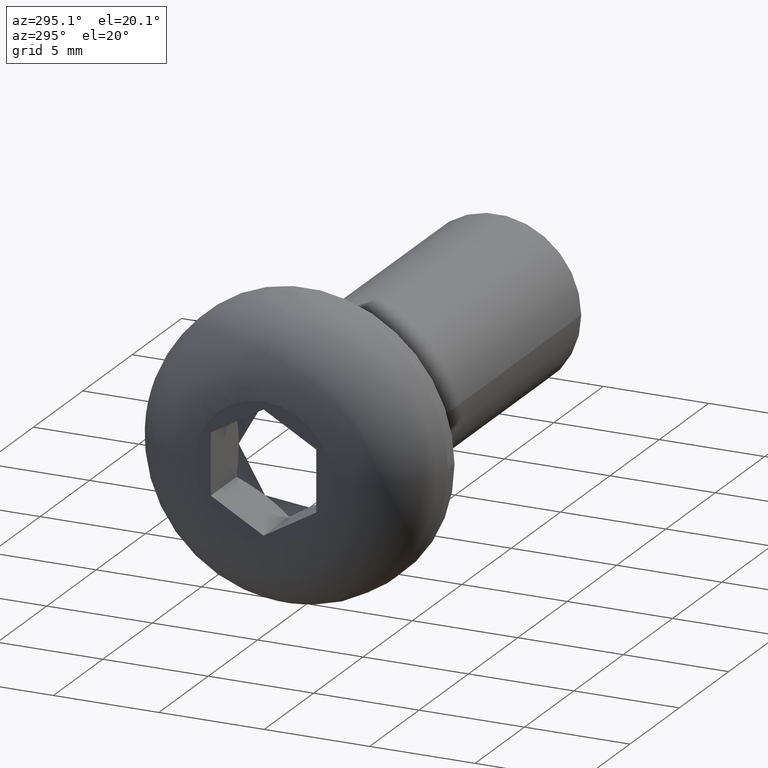
[diagram: clean part render]
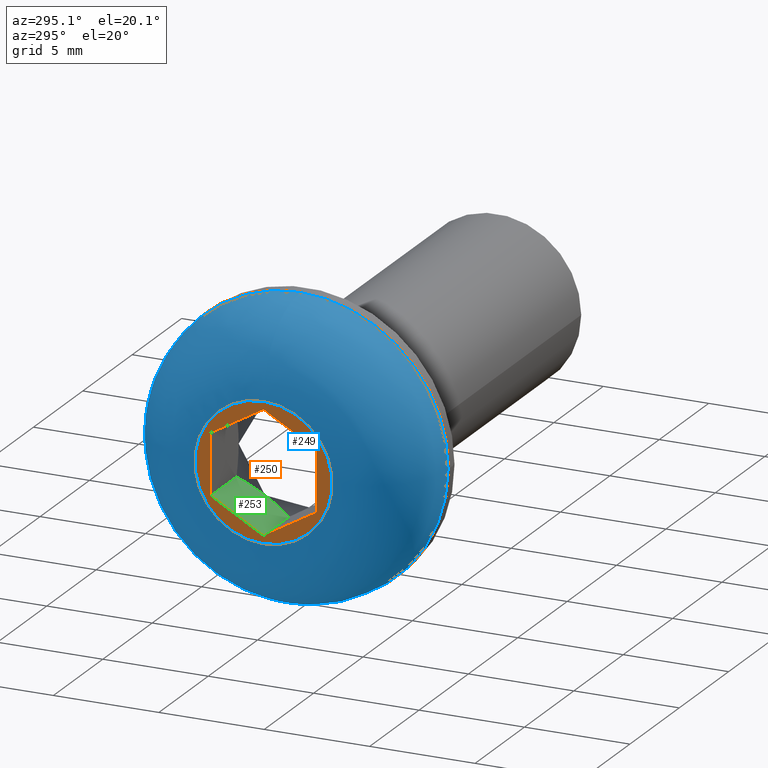
[diagram: same view with three faces highlighted in distinct colors, each labeled with its STEP entity id]
A machine part, auxiliary view with three faces highlighted in distinct colors.
Their STEP definitions:

[orange] entity #250 — the highlighted planar face has unit normal (-1, -0, 0).
#26=FACE_BOUND('',#93,.T.);
#29=PLANE('',#299);
#38=LINE('',#438,#54);
#39=LINE('',#440,#55);
#40=LINE('',#442,#56);
#41=LINE('',#444,#57);
#42=LINE('',#446,#58);
#43=LINE('',#447,#59);
#54=VECTOR('',#348,10.);
#55=VECTOR('',#349,10.);
#56=VECTOR('',#350,10.);
#57=VECTOR('',#351,10.);
#58=VECTOR('',#352,10.);
#59=VECTOR('',#353,10.);
#76=FACE_OUTER_BOUND('',#92,.T.);
#92=EDGE_LOOP('',(#197));
#93=EDGE_LOOP('',(#198,#199,#200,#201,#202,#203));
#113=CIRCLE('',#298,3.26);
#123=VERTEX_POINT('',#432);
#124=VERTEX_POINT('',#436);
#125=VERTEX_POINT('',#437);
#126=VERTEX_POINT('',#439);
#127=VERTEX_POINT('',#441);
#128=VERTEX_POINT('',#443);
#129=VERTEX_POINT('',#445);
#151=EDGE_CURVE('',#123,#123,#113,.T.);
#152=EDGE_CURVE('',#124,#125,#38,.T.);
#153=EDGE_CURVE('',#125,#126,#39,.T.);
#154=EDGE_CURVE('',#126,#127,#40,.T.);
#155=EDGE_CURVE('',#127,#128,#41,.T.);
#156=EDGE_CURVE('',#128,#129,#42,.T.);
#157=EDGE_CURVE('',#129,#124,#43,.T.);
#197=ORIENTED_EDGE('',*,*,#151,.F.);
#198=ORIENTED_EDGE('',*,*,#152,.T.);
#199=ORIENTED_EDGE('',*,*,#153,.T.);
#200=ORIENTED_EDGE('',*,*,#154,.T.);
#201=ORIENTED_EDGE('',*,*,#155,.T.);
#202=ORIENTED_EDGE('',*,*,#156,.T.);
#203=ORIENTED_EDGE('',*,*,#157,.T.);
#250=ADVANCED_FACE('',(#76,#26),#29,.T.);
#298=AXIS2_PLACEMENT_3D('',#434,#344,#345);
#299=AXIS2_PLACEMENT_3D('',#435,#346,#347);
#344=DIRECTION('center_axis',(1.,5.98373334115326E-18,0.));
#345=DIRECTION('ref_axis',(5.98373334115326E-18,-1.,1.22464679914735E-16));
#346=DIRECTION('center_axis',(-1.,-5.98373334115326E-18,0.));
#347=DIRECTION('ref_axis',(0.,0.,1.));
#348=DIRECTION('',(-5.75324797015349E-33,9.61481343191782E-16,1.));
#349=DIRECTION('',(5.18206508291066E-18,-0.866025403784438,0.5));
#350=DIRECTION('',(5.18206508291066E-18,-0.866025403784439,-0.5));
#351=DIRECTION('',(5.75324797015348E-34,-9.61481343191782E-17,-1.));
#352=DIRECTION('',(-5.18206508291066E-18,0.866025403784439,-0.5));
#353=DIRECTION('',(-5.18206508291066E-18,0.866025403784439,0.5));
#432=CARTESIAN_POINT('',(-4.4,-5.45237950046177E-16,3.26));
#434=CARTESIAN_POINT('Origin',(-4.4,-1.46003093524139E-16,0.));
#435=CARTESIAN_POINT('Origin',(-4.4,4.94337567297407,0.));
#436=CARTESIAN_POINT('',(-4.4,2.5,-1.44337567297407));
#437=CARTESIAN_POINT('',(-4.4,2.5,1.44337567297406));
#438=CARTESIAN_POINT('',(-4.4,2.5,0.721687836487029));
#439=CARTESIAN_POINT('',(-4.4,2.07521986050829E-16,2.88675134594813));
#440=CARTESIAN_POINT('',(-4.4,0.625,2.52590742770461));
#441=CARTESIAN_POINT('',(-4.4,-2.5,1.44337567297406));
#442=CARTESIAN_POINT('',(-4.4,-1.875,1.80421959121758));
#443=CARTESIAN_POINT('',(-4.4,-2.5,-1.44337567297406));
#444=CARTESIAN_POINT('',(-4.4,-2.5,-0.721687836487032));
#445=CARTESIAN_POINT('',(-4.4,-4.94147952424845E-16,-2.88675134594813));
#446=CARTESIAN_POINT('',(-4.4,-0.625000000000001,-2.52590742770461));
#447=CARTESIAN_POINT('',(-4.4,1.875,-1.80421959121758));

[blue] entity #249 — the highlighted face is a freeform B-spline surface patch.
#22=(
BOUNDED_SURFACE()
B_SPLINE_SURFACE(2,2,((#401,#402,#403,#404,#405,#406,#407,#408,#409),(#410,
#411,#412,#413,#414,#415,#416,#417,#418),(#419,#420,#421,#422,#423,#424,
#425,#426,#427)),.UNSPECIFIED.,.F.,.T.,.F.)
B_SPLINE_SURFACE_WITH_KNOTS((3,3),(3,2,2,2,3),(-1.5707963267949,1.20300443014027E-17),
(-3.14159265358979,-1.5707963267949,0.,1.5707963267949,3.14159265358979),
 .UNSPECIFIED.)
GEOMETRIC_REPRESENTATION_ITEM()
RATIONAL_B_SPLINE_SURFACE(((1.,0.707106781186548,1.,0.707106781186548,1.,
0.707106781186548,1.,0.707106781186548,1.),(0.707106781186548,0.5,0.707106781186548,
0.5,0.707106781186548,0.5,0.707106781186548,0.5,0.707106781186548),(1.,
0.707106781186548,1.,0.707106781186548,1.,0.707106781186548,1.,0.707106781186548,
1.)))
REPRESENTATION_ITEM('')
SURFACE()
);
#75=FACE_OUTER_BOUND('',#91,.T.);
#91=EDGE_LOOP('',(#192,#193,#194,#195,#196));
#110=CIRCLE('',#295,7.);
#111=CIRCLE('',#296,7.);
#112=CIRCLE('',#297,3.74);
#113=CIRCLE('',#298,3.26);
#121=VERTEX_POINT('',#428);
#122=VERTEX_POINT('',#429);
#123=VERTEX_POINT('',#432);
#148=EDGE_CURVE('',#121,#122,#110,.T.);
#149=EDGE_CURVE('',#122,#121,#111,.T.);
#150=EDGE_CURVE('',#121,#123,#112,.T.);
#151=EDGE_CURVE('',#123,#123,#113,.T.);
#192=ORIENTED_EDGE('',*,*,#148,.T.);
#193=ORIENTED_EDGE('',*,*,#149,.T.);
#194=ORIENTED_EDGE('',*,*,#150,.T.);
#195=ORIENTED_EDGE('',*,*,#151,.T.);
#196=ORIENTED_EDGE('',*,*,#150,.F.);
#249=ADVANCED_FACE('',(#75),#22,.F.);
#295=AXIS2_PLACEMENT_3D('',#430,#338,#339);
#296=AXIS2_PLACEMENT_3D('',#431,#340,#341);
#297=AXIS2_PLACEMENT_3D('',#433,#342,#343);
#298=AXIS2_PLACEMENT_3D('',#434,#344,#345);
#338=DIRECTION('center_axis',(-1.,-5.98373334115326E-18,0.));
#339=DIRECTION('ref_axis',(0.,-1.,1.22464679914735E-16));
#340=DIRECTION('center_axis',(-1.,-5.98373334115326E-18,0.));
#341=DIRECTION('ref_axis',(0.,-1.,1.22464679914735E-16));
#342=DIRECTION('center_axis',(5.98373334115326E-18,-1.,-1.22464679914735E-16));
#343=DIRECTION('ref_axis',(0.,-1.22464679914735E-16,1.));
#344=DIRECTION('center_axis',(1.,5.98373334115326E-18,0.));
#345=DIRECTION('ref_axis',(5.98373334115326E-18,-1.,1.22464679914735E-16));
#401=CARTESIAN_POINT('Ctrl Pts',(-4.4,-1.46003093524139E-16,3.26));
#402=CARTESIAN_POINT('Ctrl Pts',(-4.4,-3.26,3.26));
#403=CARTESIAN_POINT('Ctrl Pts',(-4.4,-3.26,0.));
#404=CARTESIAN_POINT('Ctrl Pts',(-4.4,-3.26,-3.26));
#405=CARTESIAN_POINT('Ctrl Pts',(-4.4,-1.46003093524139E-16,-3.26));
#406=CARTESIAN_POINT('Ctrl Pts',(-4.4,3.26,-3.26));
#407=CARTESIAN_POINT('Ctrl Pts',(-4.4,3.26,0.));
#408=CARTESIAN_POINT('Ctrl Pts',(-4.4,3.26,3.26));
#409=CARTESIAN_POINT('Ctrl Pts',(-4.4,-1.46003093524139E-16,3.26));
#410=CARTESIAN_POINT('Ctrl Pts',(-4.4,-1.46003093524139E-16,7.));
#411=CARTESIAN_POINT('Ctrl Pts',(-4.4,-7.,7.));
#412=CARTESIAN_POINT('Ctrl Pts',(-4.4,-7.,0.));
#413=CARTESIAN_POINT('Ctrl Pts',(-4.4,-7.,-7.));
#414=CARTESIAN_POINT('Ctrl Pts',(-4.4,-1.46003093524139E-16,-7.));
#415=CARTESIAN_POINT('Ctrl Pts',(-4.4,7.,-7.));
#416=CARTESIAN_POINT('Ctrl Pts',(-4.4,7.,0.));
#417=CARTESIAN_POINT('Ctrl Pts',(-4.4,7.,7.));
#418=CARTESIAN_POINT('Ctrl Pts',(-4.4,-1.46003093524139E-16,7.));
#419=CARTESIAN_POINT('Ctrl Pts',(-0.659999999999995,-1.23623930828226E-16,
7.));
#420=CARTESIAN_POINT('Ctrl Pts',(-0.659999999999995,-7.,7.));
#421=CARTESIAN_POINT('Ctrl Pts',(-0.659999999999995,-7.,0.));
#422=CARTESIAN_POINT('Ctrl Pts',(-0.659999999999995,-7.,-7.));
#423=CARTESIAN_POINT('Ctrl Pts',(-0.659999999999995,-1.23623930828226E-16,
-7.));
#424=CARTESIAN_POINT('Ctrl Pts',(-0.659999999999995,7.,-7.));
#425=CARTESIAN_POINT('Ctrl Pts',(-0.659999999999995,7.,0.));
#426=CARTESIAN_POINT('Ctrl Pts',(-0.659999999999995,7.,7.));
#427=CARTESIAN_POINT('Ctrl Pts',(-0.659999999999995,-1.23623930828226E-16,
7.));
#428=CARTESIAN_POINT('',(-0.659999999999995,-9.80876690231374E-16,7.));
#429=CARTESIAN_POINT('',(-0.659999999999995,-7.,-8.57252759403147E-16));
#430=CARTESIAN_POINT('Origin',(-0.659999999999995,-1.23623930828226E-16,
0.));
#431=CARTESIAN_POINT('Origin',(-0.659999999999995,-1.23623930828226E-16,
0.));
#432=CARTESIAN_POINT('',(-4.4,-5.45237950046177E-16,3.26));
#433=CARTESIAN_POINT('Origin',(-0.659999999999995,-5.22858787350264E-16,
3.26));
#434=CARTESIAN_POINT('Origin',(-4.4,-1.46003093524139E-16,0.));

[green] entity #253 — the highlighted planar face has unit normal (-0, 0.5, -0.866).
#16=(
BOUNDED_CURVE()
B_SPLINE_CURVE(2,(#460,#461,#462),.UNSPECIFIED.,.F.,.F.)
B_SPLINE_CURVE_WITH_KNOTS((3,3),(0.,0.292109034519483),.UNSPECIFIED.)
CURVE()
GEOMETRIC_REPRESENTATION_ITEM()
RATIONAL_B_SPLINE_CURVE((1.,1.15470053837925,1.))
REPRESENTATION_ITEM('')
);
#31=PLANE('',#302);
#43=LINE('',#447,#59);
#45=LINE('',#456,#61);
#47=LINE('',#463,#63);
#59=VECTOR('',#353,10.);
#61=VECTOR('',#359,10.);
#63=VECTOR('',#363,10.);
#79=FACE_OUTER_BOUND('',#96,.T.);
#96=EDGE_LOOP('',(#213,#214,#215,#216));
#124=VERTEX_POINT('',#436);
#129=VERTEX_POINT('',#445);
#130=VERTEX_POINT('',#451);
#132=VERTEX_POINT('',#459);
#157=EDGE_CURVE('',#129,#124,#43,.T.);
#160=EDGE_CURVE('',#130,#129,#45,.T.);
#162=EDGE_CURVE('',#132,#130,#16,.T.);
#163=EDGE_CURVE('',#132,#124,#47,.T.);
#213=ORIENTED_EDGE('',*,*,#162,.F.);
#214=ORIENTED_EDGE('',*,*,#163,.T.);
#215=ORIENTED_EDGE('',*,*,#157,.F.);
#216=ORIENTED_EDGE('',*,*,#160,.F.);
#253=ADVANCED_FACE('',(#79),#31,.F.);
#302=AXIS2_PLACEMENT_3D('',#458,#361,#362);
#353=DIRECTION('',(-5.18206508291066E-18,0.866025403784439,0.5));
#359=DIRECTION('',(-1.,-5.98373334115326E-18,0.));
#361=DIRECTION('center_axis',(-2.99186667057663E-18,0.5,-0.866025403784439));
#362=DIRECTION('ref_axis',(-1.,0.,3.45471005527377E-18));
#363=DIRECTION('',(-1.,-5.98373334115326E-18,0.));
#436=CARTESIAN_POINT('',(-4.4,2.5,-1.44337567297407));
#445=CARTESIAN_POINT('',(-4.4,-4.94147952424845E-16,-2.88675134594813));
#447=CARTESIAN_POINT('',(-4.4,1.875,-1.80421959121758));
#451=CARTESIAN_POINT('',(-1.79999999999999,-9.55887439860013E-16,-2.88675134594813));
#456=CARTESIAN_POINT('',(-3.1,-1.2490009027033E-15,-2.88675134594813));
#458=CARTESIAN_POINT('Origin',(-4.4,2.5,-1.44337567297407));
#459=CARTESIAN_POINT('',(-1.79999999999999,2.5,-1.44337567297407));
#460=CARTESIAN_POINT('Ctrl Pts',(-1.79999999999999,2.50000000000001,-1.44337567297406));
#461=CARTESIAN_POINT('Ctrl Pts',(-1.38333333333332,1.25,-2.1650635094611));
#462=CARTESIAN_POINT('Ctrl Pts',(-1.79999999999999,-1.50063162125826E-14,
-2.88675134594814));
#463=CARTESIAN_POINT('',(-3.1,2.5,-1.44337567297407));